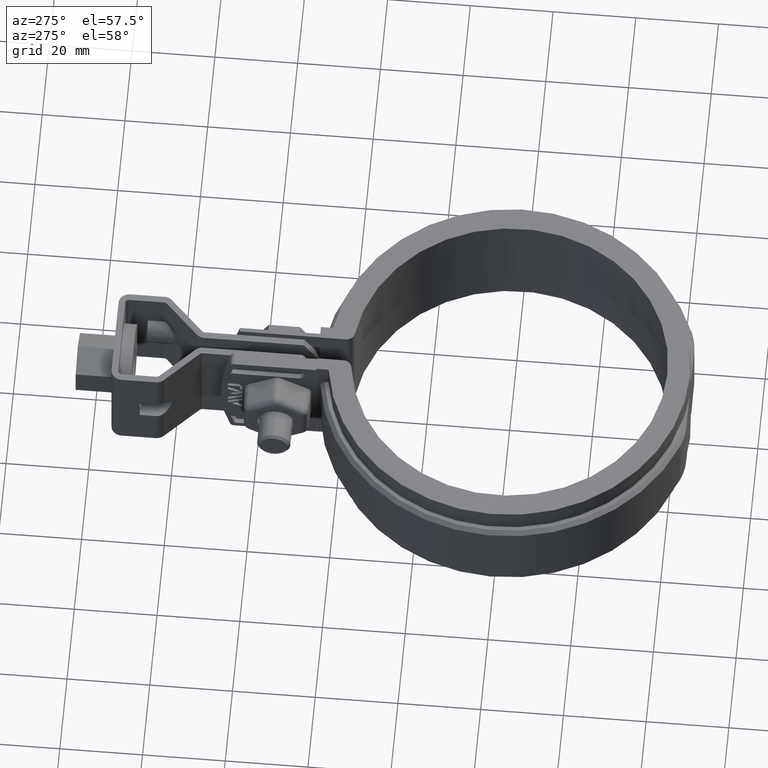
[diagram: clean part render]
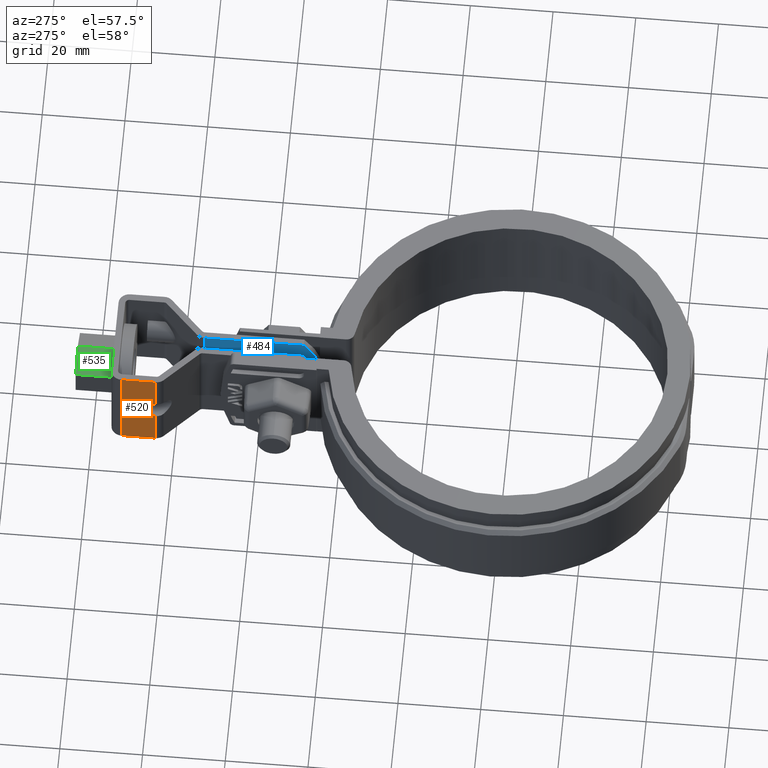
[diagram: same view with three faces highlighted in distinct colors, each labeled with its STEP entity id]
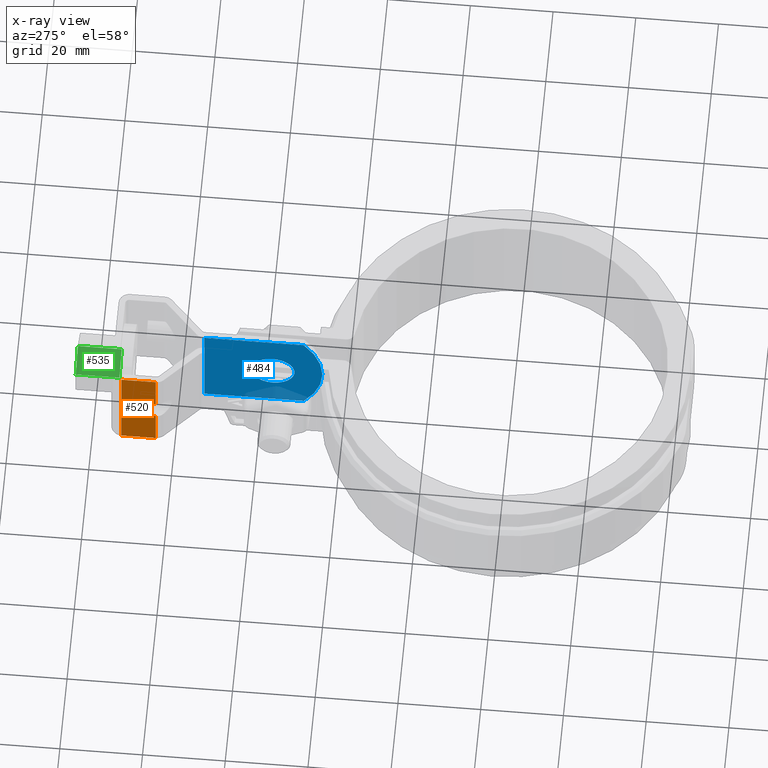
[diagram: x-ray of the same camera — body ghosted, the three highlighted faces saturated]
A machine part, auxiliary view with three faces highlighted in distinct colors.
The next image is the same camera in x-ray (body ghosted, the three faces saturated) — at least one of them is partly hidden behind the body in this view.
Their STEP definitions:

[orange] entity #520 — the highlighted planar face has unit normal (-1, 0, -0).
#520 = ADVANCED_FACE( '', ( #1025 ), #1026, .T. );
#1025 = FACE_OUTER_BOUND( '', #2268, .T. );
#1026 = PLANE( '', #2269 );
#2268 = EDGE_LOOP( '', ( #4731, #4732, #4733, #4734, #4735, #4736, #4737, #4738 ) );
#2269 = AXIS2_PLACEMENT_3D( '', #4739, #4740, #4741 );
#4731 = ORIENTED_EDGE( '', *, *, #6582, .F. );
#4732 = ORIENTED_EDGE( '', *, *, #6598, .T. );
#4733 = ORIENTED_EDGE( '', *, *, #6599, .T. );
#4734 = ORIENTED_EDGE( '', *, *, #6595, .F. );
#4735 = ORIENTED_EDGE( '', *, *, #6601, .F. );
#4736 = ORIENTED_EDGE( '', *, *, #6492, .T. );
#4737 = ORIENTED_EDGE( '', *, *, #6600, .T. );
#4738 = ORIENTED_EDGE( '', *, *, #6512, .F. );
#4739 = CARTESIAN_POINT( '', ( -12.2499999999972, 84.4909095448533, 12.5000000000033 ) );
#4740 = DIRECTION( '', ( -1.00000000000000, 2.75928290874407E-015, -3.05802634389891E-014 ) );
#4741 = DIRECTION( '', ( -3.05802634389891E-014, 1.74135233052217E-044, 1.00000000000000 ) );
#6492 = EDGE_CURVE( '', #7652, #7650, #7653, .F. );
#6512 = EDGE_CURVE( '', #7688, #7690, #7691, .T. );
#6582 = EDGE_CURVE( '', #7800, #7688, #7802, .T. );
#6595 = EDGE_CURVE( '', #7817, #7819, #7820, .F. );
#6598 = EDGE_CURVE( '', #7800, #7822, #7824, .F. );
#6599 = EDGE_CURVE( '', #7822, #7819, #7825, .F. );
#6600 = EDGE_CURVE( '', #7650, #7690, #7826, .T. );
#6601 = EDGE_CURVE( '', #7652, #7817, #7827, .T. );
#7650 = VERTEX_POINT( '', #10994 );
#7652 = VERTEX_POINT( '', #10996 );
#7653 = LINE( '', #10997, #10998 );
#7688 = VERTEX_POINT( '', #11044 );
#7690 = VERTEX_POINT( '', #11046 );
#7691 = LINE( '', #11047, #11048 );
#7800 = VERTEX_POINT( '', #11233 );
#7802 = LINE( '', #11244, #11245 );
#7817 = VERTEX_POINT( '', #11269 );
#7819 = VERTEX_POINT( '', #11278 );
#7820 = LINE( '', #11279, #11280 );
#7822 = VERTEX_POINT( '', #11282 );
#7824 = LINE( '', #11284, #11285 );
#7825 = LINE( '', #11286, #11287 );
#7826 = LINE( '', #11288, #11289 );
#7827 = LINE( '', #11290, #11291 );
#10994 = CARTESIAN_POINT( '', ( -12.2499999999971, 92.7951037457392, 12.5000000000035 ) );
#10996 = CARTESIAN_POINT( '', ( -12.2499999999972, 84.4909095448533, 12.5000000000033 ) );
#10997 = CARTESIAN_POINT( '', ( -12.2499999999972, 84.4909095448533, 12.5000000000033 ) );
#10998 = VECTOR( '', #12855, 1000.00000000000 );
#11044 = CARTESIAN_POINT( '', ( -12.2499999999964, 84.4909095448540, -12.4999999999967 ) );
#11046 = CARTESIAN_POINT( '', ( -12.2499999999964, 92.7951037457399, -12.4999999999965 ) );
#11047 = CARTESIAN_POINT( '', ( -12.2499999999964, 92.7951037457399, -12.4999999999965 ) );
#11048 = VECTOR( '', #12891, 1000.00000000000 );
#11233 = CARTESIAN_POINT( '', ( -12.2499999999967, 84.4909095448537, -2.64999999999669 ) );
#11244 = CARTESIAN_POINT( '', ( -12.2499999999972, 84.4909095448533, 12.5000000000033 ) );
#11245 = VECTOR( '', #12998, 1000.00000000000 );
#11269 = CARTESIAN_POINT( '', ( -12.2499999999969, 84.4909095448535, 2.65000000000325 ) );
#11278 = CARTESIAN_POINT( '', ( -12.2499999999969, 88.3951037457394, 2.65000000000336 ) );
#11279 = CARTESIAN_POINT( '', ( -12.2499999999969, 78.3951037457391, 2.65000000000308 ) );
#11280 = VECTOR( '', #13014, 1000.00000000000 );
#11282 = CARTESIAN_POINT( '', ( -12.2499999999967, 88.3951037457396, -2.64999999999658 ) );
#11284 = CARTESIAN_POINT( '', ( -12.2499999999968, 78.3951037457393, -2.64999999999686 ) );
#11285 = VECTOR( '', #13021, 1000.00000000000 );
#11286 = CARTESIAN_POINT( '', ( -12.2499999999972, 88.3951037457391, 12.5000000000034 ) );
#11287 = VECTOR( '', #13022, 1000.00000000000 );
#11288 = CARTESIAN_POINT( '', ( -12.2499999999971, 92.7951037457392, 12.5000000000035 ) );
#11289 = VECTOR( '', #13023, 1000.00000000000 );
#11290 = CARTESIAN_POINT( '', ( -12.2499999999972, 84.4909095448533, 12.5000000000033 ) );
#11291 = VECTOR( '', #13024, 1000.00000000000 );
#12855 = DIRECTION( '', ( -2.75928290874320E-015, -1.00000000000000, -2.84772205816504E-014 ) );
#12891 = DIRECTION( '', ( 2.75928290874320E-015, 1.00000000000000, 2.84772205816504E-014 ) );
#12998 = DIRECTION( '', ( 3.05802634389892E-014, 2.84772205816503E-014, -1.00000000000000 ) );
#13014 = DIRECTION( '', ( -2.75928290874320E-015, -1.00000000000000, -2.84772205816504E-014 ) );
#13021 = DIRECTION( '', ( -2.75928290874320E-015, -1.00000000000000, -2.84772205816504E-014 ) );
#13022 = DIRECTION( '', ( 3.05802634389892E-014, 2.84772205816504E-014, -1.00000000000000 ) );
#13023 = DIRECTION( '', ( 3.05802634389892E-014, 2.84772205816503E-014, -1.00000000000000 ) );
#13024 = DIRECTION( '', ( 3.05802634389892E-014, 2.84772205816503E-014, -1.00000000000000 ) );

[blue] entity #484 — the highlighted planar face has unit normal (-1, 0, -0).
#484 = ADVANCED_FACE( '', ( #947, #948 ), #949, .T. );
#947 = FACE_OUTER_BOUND( '', #2190, .T. );
#948 = FACE_BOUND( '', #2191, .T. );
#949 = PLANE( '', #2192 );
#2190 = EDGE_LOOP( '', ( #4416, #4417, #4418, #4419 ) );
#2191 = EDGE_LOOP( '', ( #4420 ) );
#2192 = AXIS2_PLACEMENT_3D( '', #4421, #4422, #4423 );
#4416 = ORIENTED_EDGE( '', *, *, #6498, .F. );
#4417 = ORIENTED_EDGE( '', *, *, #6499, .F. );
#4418 = ORIENTED_EDGE( '', *, *, #6482, .T. );
#4419 = ORIENTED_EDGE( '', *, *, #6500, .F. );
#4420 = ORIENTED_EDGE( '', *, *, #6501, .F. );
#4421 = CARTESIAN_POINT( '', ( 1.40000000000348, 45.3951037457402, -12.4999999999974 ) );
#4422 = DIRECTION( '', ( -1.00000000000000, 2.65969893920128E-015, -3.06414937566802E-014 ) );
#4423 = DIRECTION( '', ( -3.06414937566802E-014, 1.67850601023495E-044, 1.00000000000000 ) );
#6482 = EDGE_CURVE( '', #7632, #7630, #7633, .F. );
#6498 = EDGE_CURVE( '', #7663, #7664, #7665, .T. );
#6499 = EDGE_CURVE( '', #7632, #7663, #7666, .F. );
#6500 = EDGE_CURVE( '', #7664, #7630, #7667, .T. );
#6501 = EDGE_CURVE( '', #7668, #7668, #7669, .T. );
#7630 = VERTEX_POINT( '', #10968 );
#7632 = VERTEX_POINT( '', #10970 );
#7633 = LINE( '', #10971, #10972 );
#7663 = VERTEX_POINT( '', #11011 );
#7664 = VERTEX_POINT( '', #11012 );
#7665 = LINE( '', #11013, #11014 );
#7666 = CIRCLE( '', #11015, 19.6111110000000 );
#7667 = LINE( '', #11016, #11017 );
#7668 = VERTEX_POINT( '', #11018 );
#7669 = CIRCLE( '', #11019, 5.25000000000000 );
#10968 = CARTESIAN_POINT( '', ( 1.40000000000279, 73.9492501200356, 12.5000000000034 ) );
#10970 = CARTESIAN_POINT( '', ( 1.40000000000273, 49.8951037788275, 12.5000000000027 ) );
#10971 = CARTESIAN_POINT( '', ( 1.40000000000271, 45.3951037457395, 12.5000000000026 ) );
#10972 = VECTOR( '', #12837, 1000.00000000000 );
#11011 = CARTESIAN_POINT( '', ( 1.40000000000349, 49.8951037788283, -12.4999999999973 ) );
#11012 = CARTESIAN_POINT( '', ( 1.40000000000355, 73.9492501200363, -12.4999999999966 ) );
#11013 = CARTESIAN_POINT( '', ( 1.40000000000361, 92.7951037457399, -12.4999999999961 ) );
#11014 = VECTOR( '', #12865, 1000.00000000000 );
#11015 = AXIS2_PLACEMENT_3D( '', #12866, #12867, #12868 );
#11016 = CARTESIAN_POINT( '', ( 1.40000000000355, 73.9492501200363, -12.4999999999966 ) );
#11017 = VECTOR( '', #12869, 1000.00000000000 );
#11018 = CARTESIAN_POINT( '', ( 1.40000000000297, 57.3951037457397, 5.25000000000295 ) );
#11019 = AXIS2_PLACEMENT_3D( '', #12870, #12871, #12872 );
#12837 = DIRECTION( '', ( -2.65969893920041E-015, -1.00000000000000, -2.84772205816504E-014 ) );
#12865 = DIRECTION( '', ( 2.65969893920041E-015, 1.00000000000000, 2.84772205816504E-014 ) );
#12866 = CARTESIAN_POINT( '', ( 1.40000000000315, 65.0062147457397, 3.19614595138250E-012 ) );
#12867 = DIRECTION( '', ( -1.00000000000000, 2.65969893920128E-015, -3.06414937566802E-014 ) );
#12868 = DIRECTION( '', ( -3.06414937566802E-014, 0.000000000000000, 1.00000000000000 ) );
#12869 = DIRECTION( '', ( -3.06414937566803E-014, -2.85369574741963E-014, 1.00000000000000 ) );
#12870 = CARTESIAN_POINT( '', ( 1.40000000000313, 57.3951037457397, 2.95058582054170E-012 ) );
#12871 = DIRECTION( '', ( -1.00000000000000, 2.65969893920128E-015, -3.06414937566802E-014 ) );
#12872 = DIRECTION( '', ( -3.06414937566802E-014, 0.000000000000000, 1.00000000000000 ) );

[green] entity #535 — the highlighted planar face has unit normal (0.5, 0, -0.866).
#535 = ADVANCED_FACE( '', ( #1061 ), #1062, .F. );
#1061 = FACE_OUTER_BOUND( '', #2304, .T. );
#1062 = PLANE( '', #2305 );
#2304 = EDGE_LOOP( '', ( #4841, #4842, #4843, #4844 ) );
#2305 = AXIS2_PLACEMENT_3D( '', #4845, #4846, #4847 );
#4841 = ORIENTED_EDGE( '', *, *, #6622, .T. );
#4842 = ORIENTED_EDGE( '', *, *, #6620, .F. );
#4843 = ORIENTED_EDGE( '', *, *, #6616, .F. );
#4844 = ORIENTED_EDGE( '', *, *, #6625, .T. );
#4845 = CARTESIAN_POINT( '', ( -5.94999999999685, 104.395103745739, 3.43523410168232 ) );
#4846 = DIRECTION( '', ( 0.500000000000026, 2.32823549985102E-014, -0.866025403784423 ) );
#4847 = DIRECTION( '', ( 1.57772181044211E-030, -1.00000000000000, -2.68841478515171E-014 ) );
#6616 = EDGE_CURVE( '', #7852, #7854, #7855, .T. );
#6620 = EDGE_CURVE( '', #7854, #7859, #7861, .T. );
#6622 = EDGE_CURVE( '', #7864, #7859, #7865, .T. );
#6625 = EDGE_CURVE( '', #7852, #7864, #7868, .T. );
#7852 = VERTEX_POINT( '', #11325 );
#7854 = VERTEX_POINT( '', #11328 );
#7855 = LINE( '', #11329, #11330 );
#7859 = VERTEX_POINT( '', #11335 );
#7861 = LINE( '', #11338, #11339 );
#7864 = VERTEX_POINT( '', #11342 );
#7865 = LINE( '', #11343, #11344 );
#7868 = LINE( '', #11349, #11350 );
#11325 = CARTESIAN_POINT( '', ( -5.94999999999684, 104.395103745739, 3.43523410168231 ) );
#11328 = CARTESIAN_POINT( '', ( 3.04825063180485E-012, 104.395103745739, 6.87046820336078 ) );
#11329 = CARTESIAN_POINT( '', ( -5.94999999999685, 104.395103745739, 3.43523410168232 ) );
#11330 = VECTOR( '', #13047, 1000.00000000000 );
#11335 = CARTESIAN_POINT( '', ( 3.01900223297217E-012, 93.7951037457393, 6.87046820336047 ) );
#11338 = CARTESIAN_POINT( '', ( 3.04825063180485E-012, 104.395103745739, 6.87046820336078 ) );
#11339 = VECTOR( '', #13053, 1000.00000000000 );
#11342 = CARTESIAN_POINT( '', ( -5.94999999999687, 93.7951037457394, 3.43523410168201 ) );
#11343 = CARTESIAN_POINT( '', ( -5.94999999999688, 93.7951037457394, 3.43523410168202 ) );
#11344 = VECTOR( '', #13057, 1000.00000000000 );
#11349 = CARTESIAN_POINT( '', ( -5.94999999999684, 104.395103745739, 3.43523410168231 ) );
#11350 = VECTOR( '', #13060, 1000.00000000000 );
#13047 = DIRECTION( '', ( 0.866025403784424, -1.66282193860257E-014, 0.500000000000026 ) );
#13053 = DIRECTION( '', ( -2.75928290874320E-015, -1.00000000000000, -2.84772205816504E-014 ) );
#13057 = DIRECTION( '', ( 0.866025403784424, -1.66282193860257E-014, 0.500000000000026 ) );
#13060 = DIRECTION( '', ( -2.75928290874320E-015, -1.00000000000000, -2.84772205816504E-014 ) );